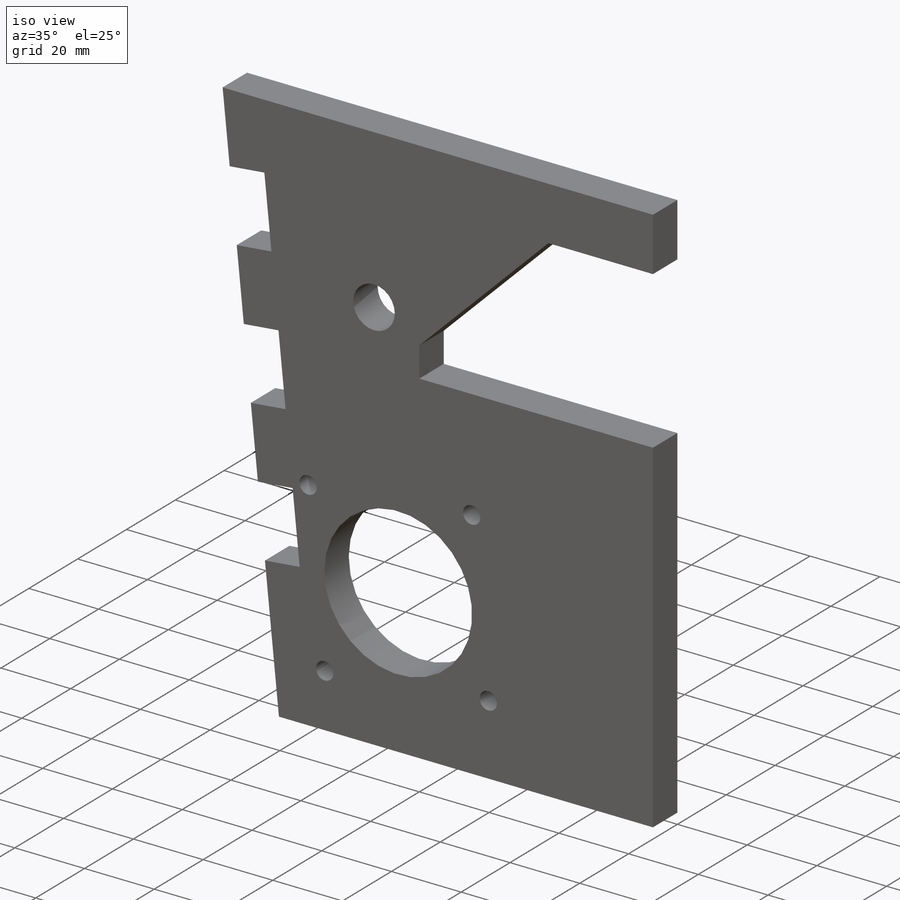
[diagram: iso view]
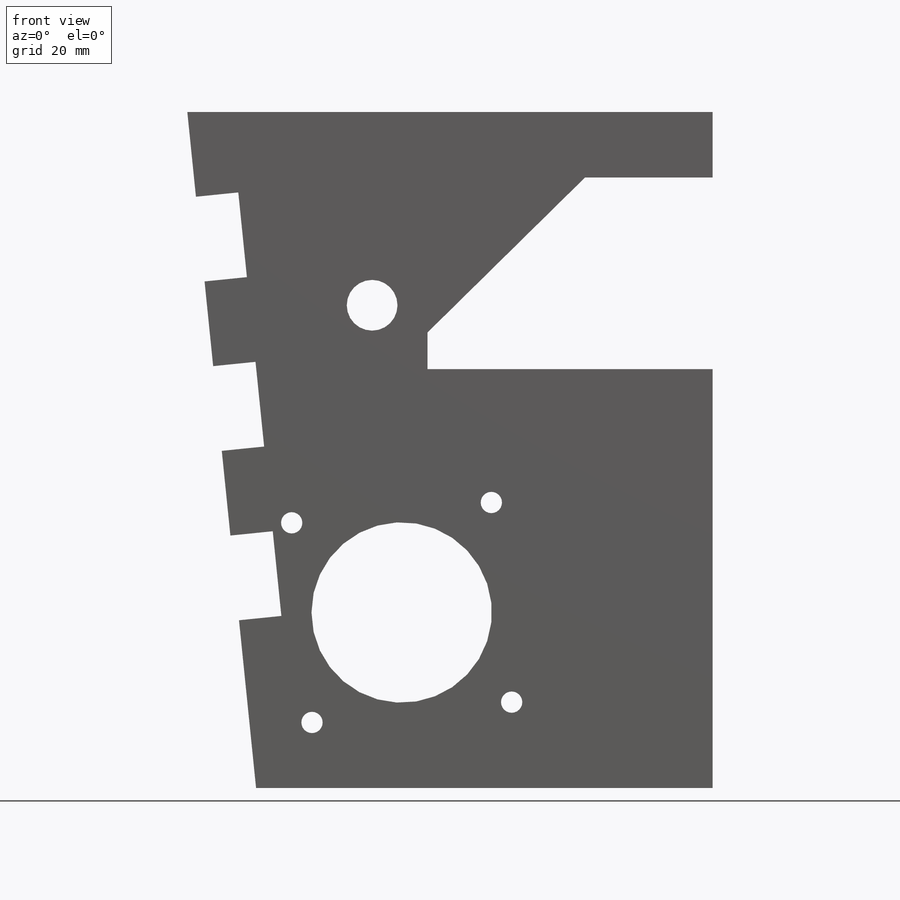
[diagram: front view]
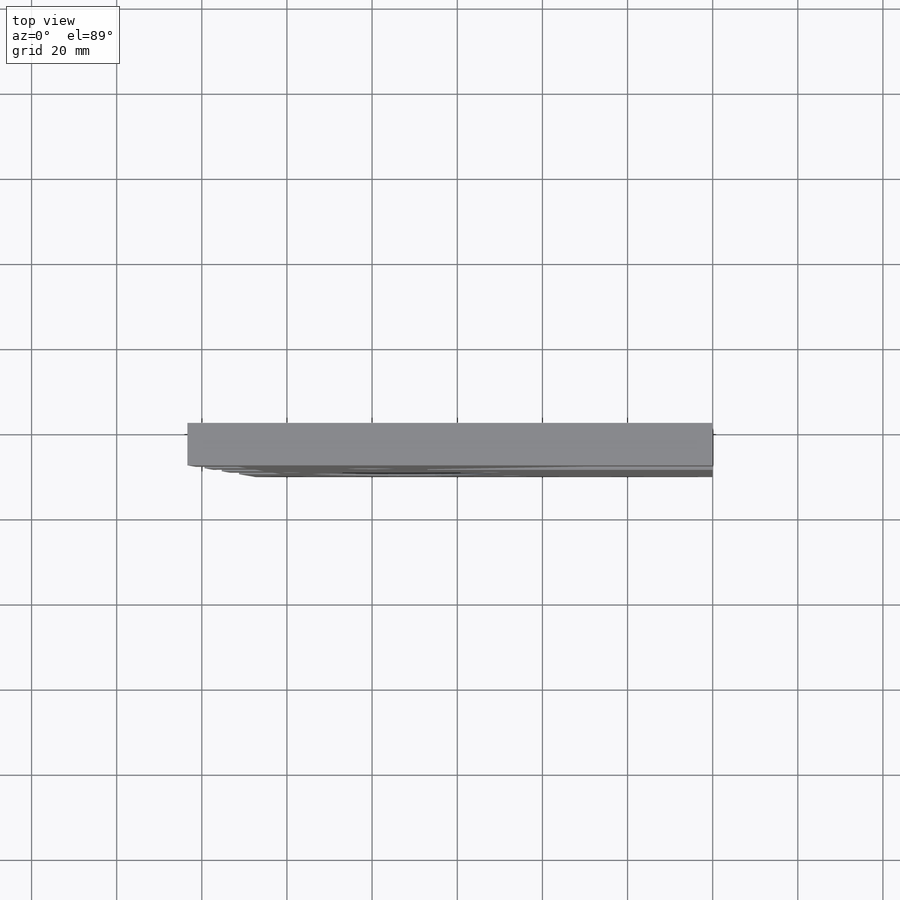
[diagram: top view]
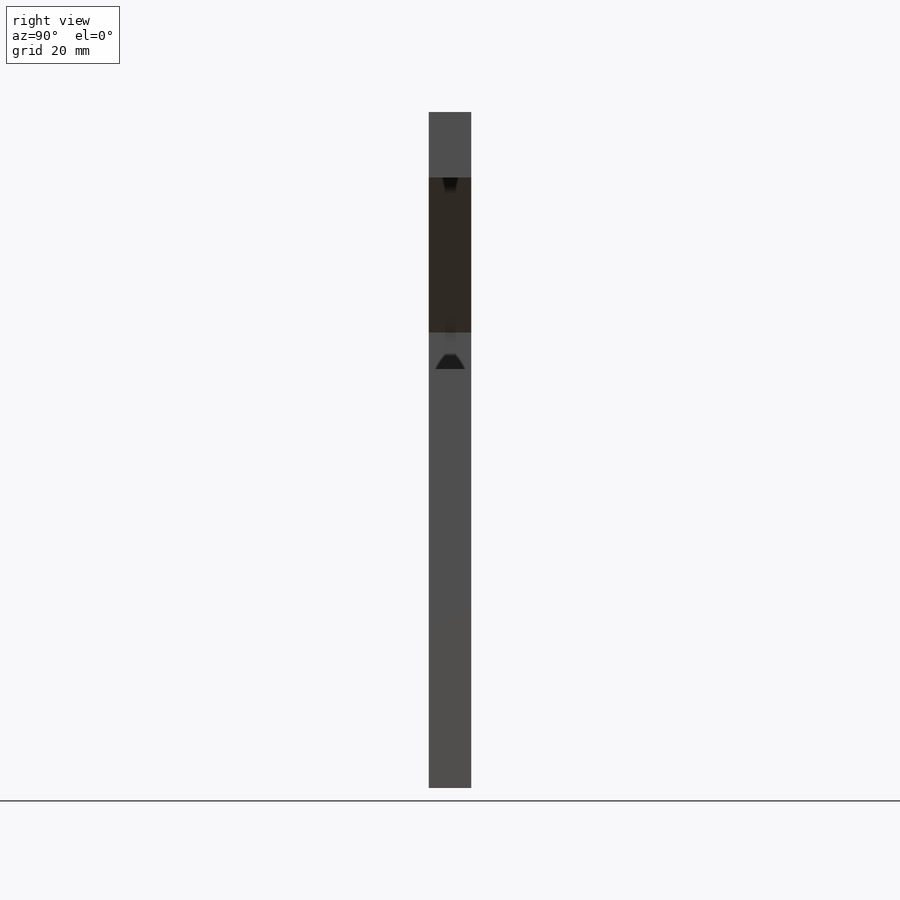
[diagram: right view]
SOLIDWORKS PART (.sldprt)
format: sldprt  version: not decoded by parser v0  size: 285,184 bytes
history: native  units: mm
features: sketch x6, cut_extrude x4, material x1, extrude x1 (+12 scaffold rows collapsed)
feature tree (24):
  scaffold x12  (default folders/planes/origin — collapsed)
  material  "Material <not specified>"
  sketch  "Sketch1"  dims[D1=95.0mm]
  extrude  "Boss-Extrude1"  Depth=10mm
  sketch  "Sketch3"  dims[D1=30.0mm D2=30.0mm D3=45.0mm D4=67.0mm]
  sketch  "Sketch4"  dims[D1=72.5mm]
  cut_extrude  "Cut-Extrude4"  Depth=10mm
  sketch  "Sketch5"  dims[D1=0.0mm]
  cut_extrude  "Cut-Extrude5"  Depth=24mm
  sketch  "Sketch6"  dims[D1=0.0mm]
  cut_extrude  "Cut-Extrude8"  Depth=24mm
  sketch  "Sketch7"
  cut_extrude  "Cut-Extrude9"  Depth=24mm
decode coverage: 10 of 11 modeling features carry decoded parameters
note: suppression state not decoded; provenance and decode notes live in map.json
